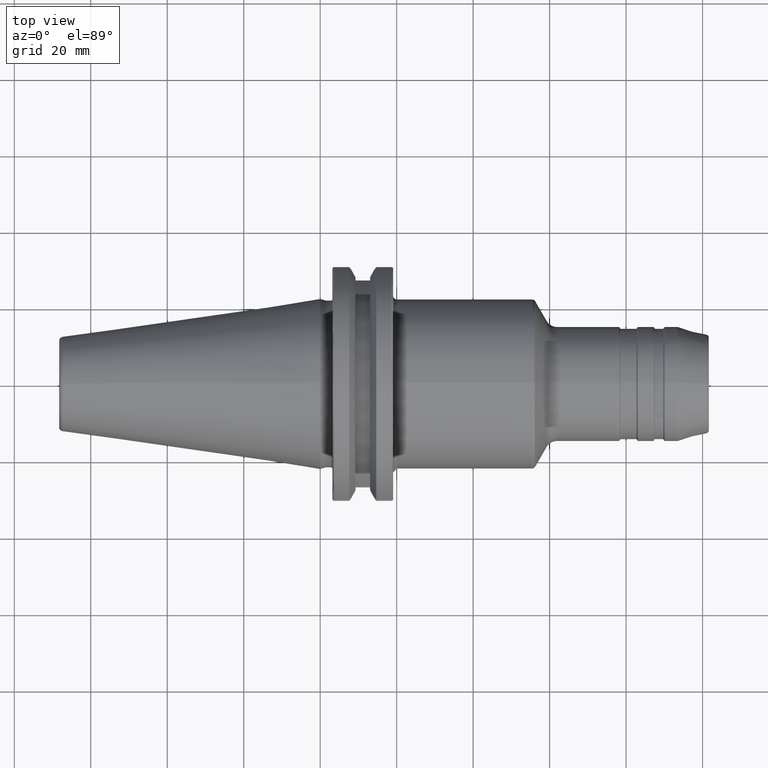
[diagram: clean part render]
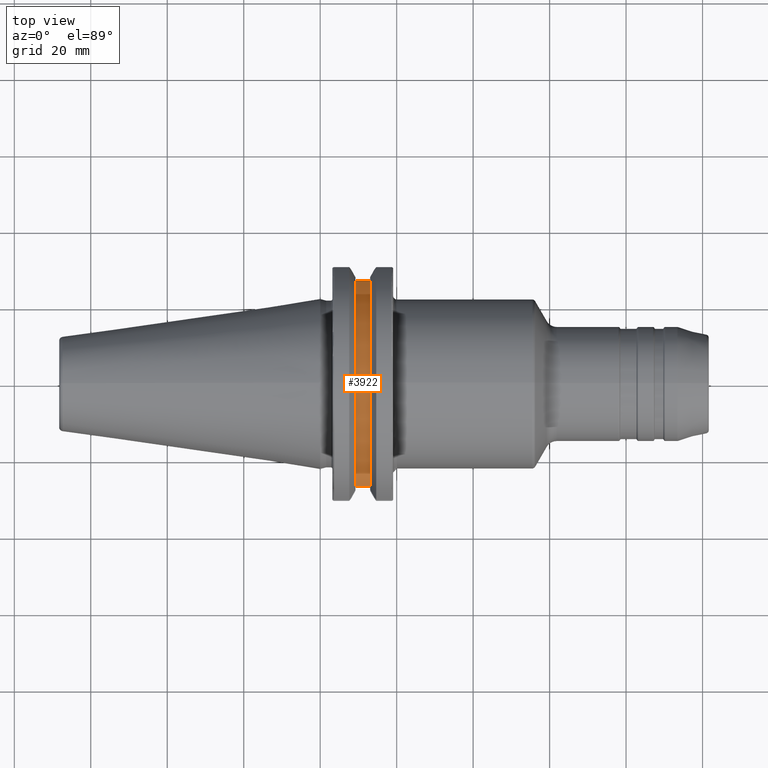
[diagram: same view with one face highlighted and labeled with its STEP entity id]
A machine part, top view. The second image highlights one B-rep face of the part: STEP entity #3922.
In plain terms, the highlighted cylindrical surface (partial cylindrical patch) has radius 28.15 mm, axis along (1, 0, 0).
Its self-contained STEP definition (entity closure, byte-faithful):
#1468=DIRECTION('',(1.E0,0.E0,0.E0));
#1469=VECTOR('',#1468,3.83E0);
#1470=CARTESIAN_POINT('',(9.2191E0,-2.693225575402E1,8.19E0));
#1471=LINE('',#1470,#1469);
#1472=CARTESIAN_POINT('',(9.2191E0,0.E0,0.E0));
#1473=DIRECTION('',(-1.E0,0.E0,0.E0));
#1474=DIRECTION('',(0.E0,-9.567408793613E-1,2.909413854352E-1));
#1475=AXIS2_PLACEMENT_3D('',#1472,#1473,#1474);
#1477=DIRECTION('',(1.E0,0.E0,0.E0));
#1478=VECTOR('',#1477,3.83E0);
#1479=CARTESIAN_POINT('',(9.2191E0,2.693225575402E1,8.19E0));
#1480=LINE('',#1479,#1478);
#1481=CARTESIAN_POINT('',(1.30491E1,0.E0,0.E0));
#1482=DIRECTION('',(1.E0,0.E0,0.E0));
#1483=DIRECTION('',(0.E0,9.567408793613E-1,2.909413854352E-1));
#1484=AXIS2_PLACEMENT_3D('',#1481,#1482,#1483);
#1565=CARTESIAN_POINT('',(9.2191E0,2.693225575402E1,8.19E0));
#1567=VERTEX_POINT('',#1565);
#1572=CARTESIAN_POINT('',(1.30491E1,2.693225575402E1,8.19E0));
#1573=VERTEX_POINT('',#1572);
#1581=CARTESIAN_POINT('',(9.2191E0,-2.693225575402E1,8.19E0));
#1583=VERTEX_POINT('',#1581);
#1588=CARTESIAN_POINT('',(1.30491E1,-2.693225575402E1,8.19E0));
#1589=VERTEX_POINT('',#1588);
#3910=CARTESIAN_POINT('',(0.E0,0.E0,0.E0));
#3911=DIRECTION('',(1.E0,0.E0,0.E0));
#3912=DIRECTION('',(0.E0,0.E0,1.E0));
#3913=AXIS2_PLACEMENT_3D('',#3910,#3911,#3912);
#3914=CYLINDRICAL_SURFACE('',#3913,2.815E1);
#3915=ORIENTED_EDGE('',*,*,#3711,.F.);
#3917=ORIENTED_EDGE('',*,*,#3916,.T.);
#3918=ORIENTED_EDGE('',*,*,#3795,.T.);
#3919=ORIENTED_EDGE('',*,*,#3890,.T.);
#3920=EDGE_LOOP('',(#3915,#3917,#3918,#3919));
#3921=FACE_OUTER_BOUND('',#3920,.F.);
#3922=ADVANCED_FACE('',(#3921),#3914,.T.);
#1476=CIRCLE('',#1475,2.815E1);
#1485=CIRCLE('',#1484,2.815E1);
#3711=EDGE_CURVE('',#1583,#1589,#1471,.T.);
#3795=EDGE_CURVE('',#1567,#1573,#1480,.T.);
#3890=EDGE_CURVE('',#1573,#1589,#1485,.T.);
#3916=EDGE_CURVE('',#1583,#1567,#1476,.T.);